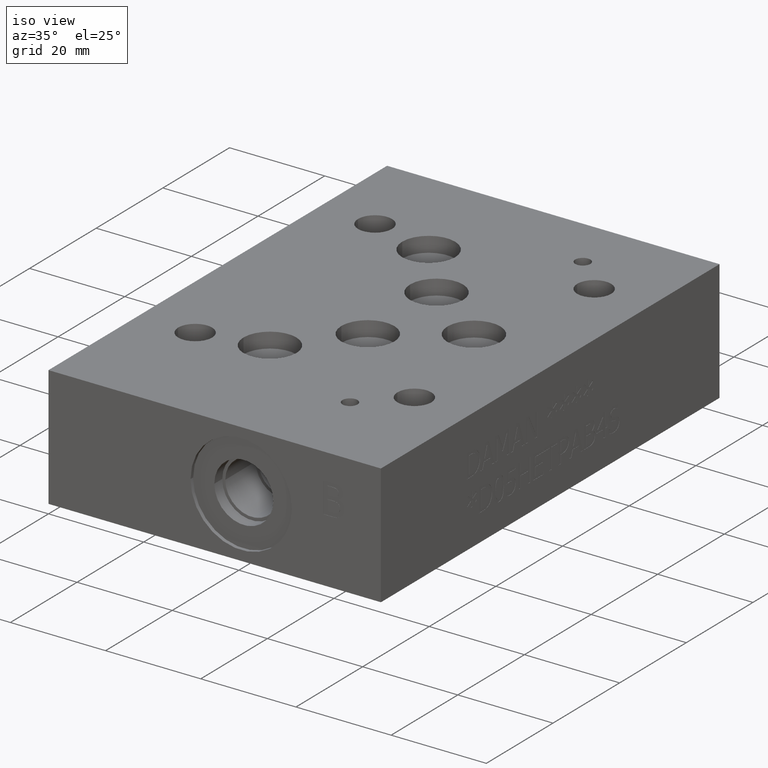
[diagram: clean part render]
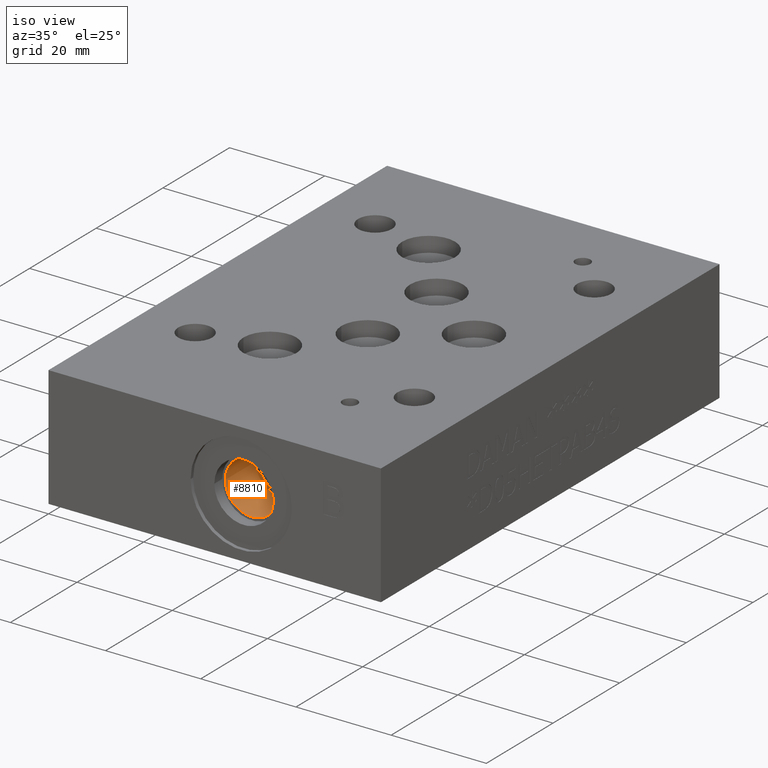
[diagram: same view with one face highlighted and labeled with its STEP entity id]
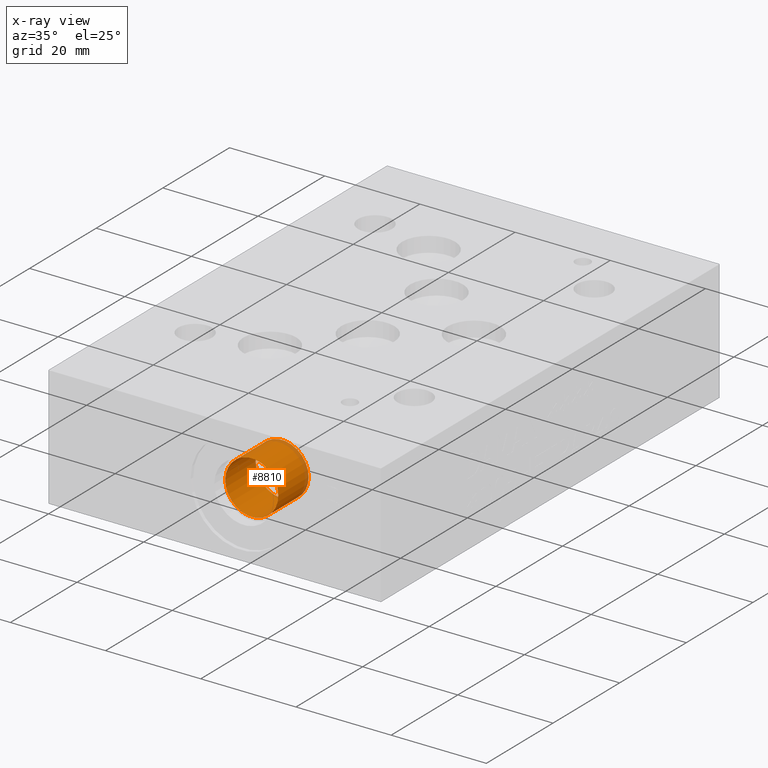
[diagram: x-ray of the same camera — body ghosted, the highlighted face saturated]
A machine part, iso view. The second image highlights one B-rep face of the part: STEP entity #8810.
The next image is the same camera in x-ray: the body ghosted, the highlighted face saturated — about 7% of this face is hidden behind the body in this view.
In plain terms, the highlighted cylindrical surface (bore or boss wall) has radius 5.5626 mm, axis along (0, -1, 0).
Its self-contained STEP definition (entity closure, byte-faithful):
#36=CYLINDRICAL_SURFACE('',#9249,5.5626);
#125=CIRCLE('',#9247,5.5626);
#127=CIRCLE('',#9250,5.5626);
#959=FACE_OUTER_BOUND('',#1476,.T.);
#1476=EDGE_LOOP('',(#7789,#7790,#7791,#7792));
#2417=LINE('',#14753,#3339);
#3339=VECTOR('',#10993,5.5626);
#4319=VERTEX_POINT('',#14746);
#4321=VERTEX_POINT('',#14751);
#5493=EDGE_CURVE('',#4319,#4319,#125,.T.);
#5495=EDGE_CURVE('',#4321,#4321,#127,.T.);
#5496=EDGE_CURVE('',#4321,#4319,#2417,.T.);
#7789=ORIENTED_EDGE('',*,*,#5495,.F.);
#7790=ORIENTED_EDGE('',*,*,#5496,.T.);
#7791=ORIENTED_EDGE('',*,*,#5493,.F.);
#7792=ORIENTED_EDGE('',*,*,#5496,.F.);
#8810=ADVANCED_FACE('',(#959),#36,.F.);
#9247=AXIS2_PLACEMENT_3D('',#14747,#10985,#10986);
#9249=AXIS2_PLACEMENT_3D('',#14750,#10989,#10990);
#9250=AXIS2_PLACEMENT_3D('',#14752,#10991,#10992);
#10985=DIRECTION('center_axis',(0.,-1.,0.));
#10986=DIRECTION('ref_axis',(1.,0.,0.));
#10989=DIRECTION('center_axis',(0.,-1.,0.));
#10990=DIRECTION('ref_axis',(1.,0.,0.));
#10991=DIRECTION('center_axis',(0.,1.,0.));
#10992=DIRECTION('ref_axis',(1.,0.,0.));
#10993=DIRECTION('',(0.,1.,0.));
#14746=CARTESIAN_POINT('',(34.925,12.2936,12.7));
#14747=CARTESIAN_POINT('Origin',(40.4876,12.2936,12.7));
#14750=CARTESIAN_POINT('Origin',(40.4876,6.1468,12.7));
#14751=CARTESIAN_POINT('',(34.925,3.175,12.7));
#14752=CARTESIAN_POINT('Origin',(40.4876,3.175,12.7));
#14753=CARTESIAN_POINT('',(34.925,6.1468,12.7));